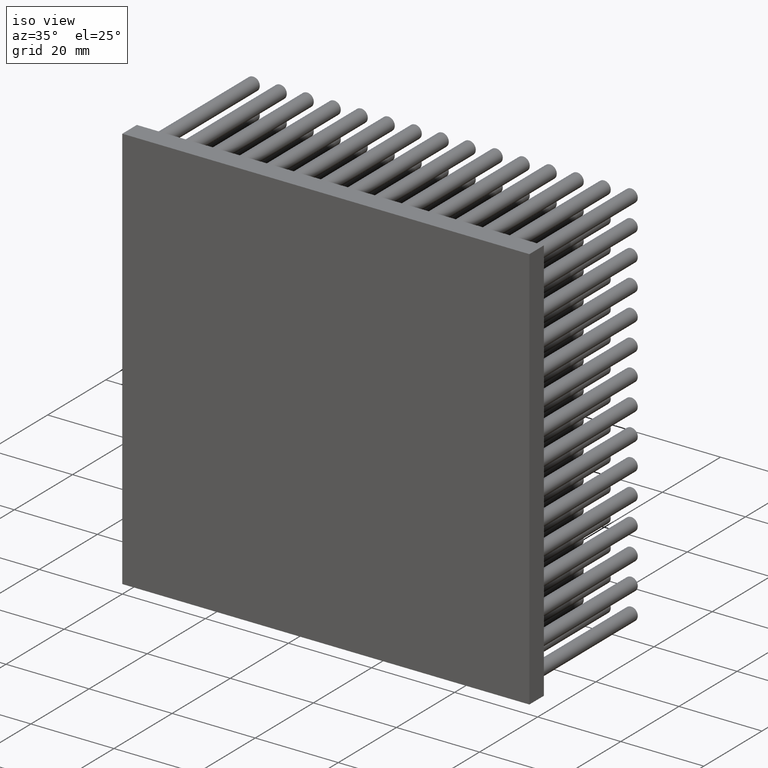
[diagram: clean part render]
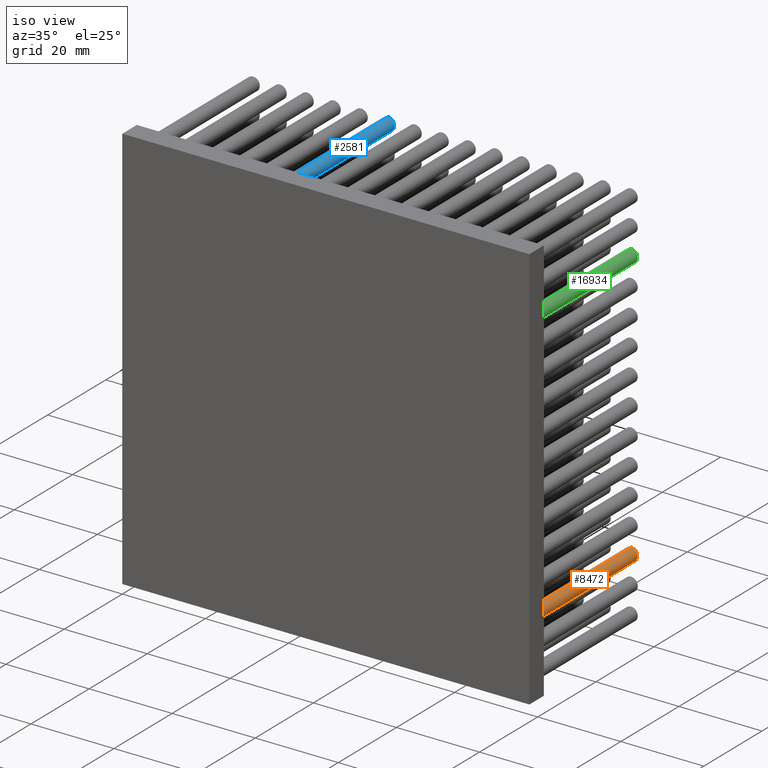
[diagram: same view with three faces highlighted in distinct colors, each labeled with its STEP entity id]
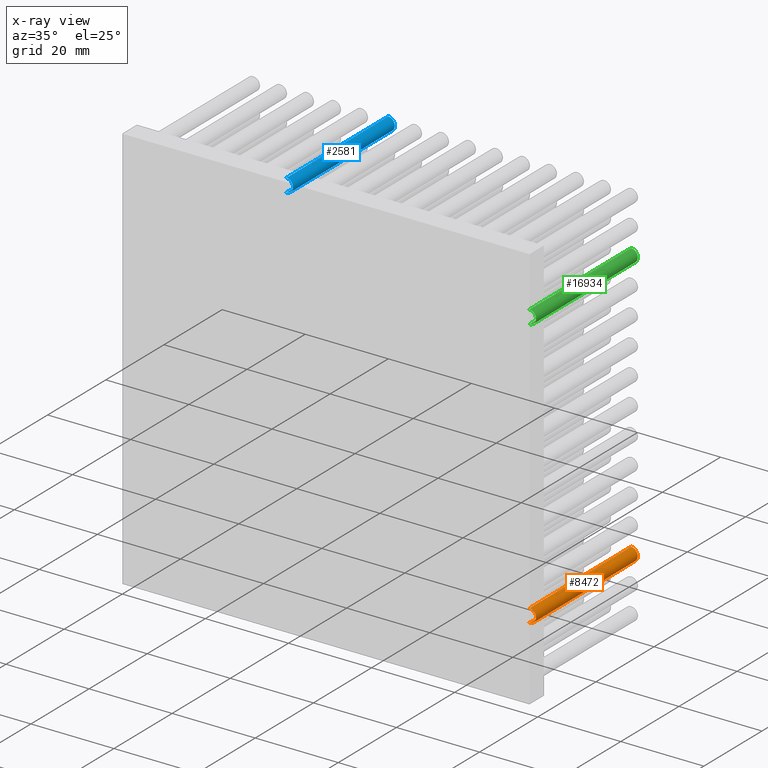
[diagram: x-ray of the same camera — body ghosted, the three highlighted faces saturated]
A machine part, iso view with three faces highlighted in distinct colors.
The next image is the same camera in x-ray (body ghosted, the three faces saturated) — at least one of them is partly hidden behind the body in this view.
Their STEP definitions:

[orange] entity #8472 — the highlighted cylindrical surface (edge-blend (fillet) strip) has radius 1.6 mm, axis along (-0, -1, -0).
#582 = ORIENTED_EDGE ( 'NONE', *, *, #1621, .T. ) ;
#730 = CARTESIAN_POINT ( 'NONE',  ( 94.49999999999998579, 40.00000000000000000, 16.50000000000000000 ) ) ;
#1064 = ORIENTED_EDGE ( 'NONE', *, *, #7811, .F. ) ;
#1621 = EDGE_CURVE ( 'NONE', #10067, #8473, #10776, .T. ) ;
#1778 = DIRECTION ( 'NONE',  ( -0.0000000000000000000, -1.000000000000000000, -0.0000000000000000000 ) ) ;
#2211 = CARTESIAN_POINT ( 'NONE',  ( 94.49999999999998579, 40.00000000000000000, 14.90000000000000036 ) ) ;
#2635 = DIRECTION ( 'NONE',  ( -0.0000000000000000000, -1.000000000000000000, -0.0000000000000000000 ) ) ;
#3077 = LINE ( 'NONE', #4450, #8586 ) ;
#3363 = EDGE_CURVE ( 'NONE', #8487, #8473, #15350, .T. ) ;
#4004 = AXIS2_PLACEMENT_3D ( 'NONE', #7870, #13501, #17751 ) ;
#4263 = CIRCLE ( 'NONE', #10144, 1.600000000000000755 ) ;
#4297 = CARTESIAN_POINT ( 'NONE',  ( 94.49999999999998579, 40.00000000000000000, 14.90000000000000036 ) ) ;
#4302 = VERTEX_POINT ( 'NONE', #8659 ) ;
#4381 = EDGE_LOOP ( 'NONE', ( #1064, #13383, #582, #12601 ) ) ;
#4450 = CARTESIAN_POINT ( 'NONE',  ( 94.49999999999998579, 40.00000000000000000, 18.10000000000000142 ) ) ;
#4780 = CYLINDRICAL_SURFACE ( 'NONE', #5862, 1.600000000000000755 ) ;
#5862 = AXIS2_PLACEMENT_3D ( 'NONE', #730, #6337, #17584 ) ;
#6337 = DIRECTION ( 'NONE',  ( -0.0000000000000000000, -1.000000000000000000, -0.0000000000000000000 ) ) ;
#7811 = EDGE_CURVE ( 'NONE', #4302, #8487, #4263, .T. ) ;
#7870 = CARTESIAN_POINT ( 'NONE',  ( 94.49999999999998579, 5.000000000000000000, 16.50000000000000000 ) ) ;
#8472 = ADVANCED_FACE ( 'NONE', ( #16024 ), #4780, .T. ) ;
#8473 = VERTEX_POINT ( 'NONE', #10580 ) ;
#8487 = VERTEX_POINT ( 'NONE', #2211 ) ;
#8586 = VECTOR ( 'NONE', #1778, 1000.000000000000000 ) ;
#8659 = CARTESIAN_POINT ( 'NONE',  ( 94.49999999999998579, 40.00000000000000000, 18.10000000000000142 ) ) ;
#9749 = VECTOR ( 'NONE', #2635, 1000.000000000000000 ) ;
#10067 = VERTEX_POINT ( 'NONE', #14711 ) ;
#10144 = AXIS2_PLACEMENT_3D ( 'NONE', #14389, #12741, #15587 ) ;
#10580 = CARTESIAN_POINT ( 'NONE',  ( 94.49999999999998579, 5.000000000000000000, 14.90000000000000036 ) ) ;
#10776 = CIRCLE ( 'NONE', #4004, 1.600000000000000755 ) ;
#11163 = EDGE_CURVE ( 'NONE', #4302, #10067, #3077, .T. ) ;
#12601 = ORIENTED_EDGE ( 'NONE', *, *, #3363, .F. ) ;
#12741 = DIRECTION ( 'NONE',  ( 0.0000000000000000000, 1.000000000000000000, 0.0000000000000000000 ) ) ;
#13383 = ORIENTED_EDGE ( 'NONE', *, *, #11163, .T. ) ;
#13501 = DIRECTION ( 'NONE',  ( 0.0000000000000000000, 1.000000000000000000, 0.0000000000000000000 ) ) ;
#14389 = CARTESIAN_POINT ( 'NONE',  ( 94.49999999999998579, 40.00000000000000000, 16.50000000000000000 ) ) ;
#14711 = CARTESIAN_POINT ( 'NONE',  ( 94.49999999999998579, 5.000000000000000000, 18.10000000000000142 ) ) ;
#15350 = LINE ( 'NONE', #4297, #9749 ) ;
#15587 = DIRECTION ( 'NONE',  ( 0.0000000000000000000, 0.0000000000000000000, 1.000000000000000000 ) ) ;
#16024 = FACE_OUTER_BOUND ( 'NONE', #4381, .T. ) ;
#17584 = DIRECTION ( 'NONE',  ( 0.0000000000000000000, 0.0000000000000000000, -1.000000000000000000 ) ) ;
#17751 = DIRECTION ( 'NONE',  ( 0.0000000000000000000, 0.0000000000000000000, 1.000000000000000000 ) ) ;

[blue] entity #2581 — the highlighted cylindrical surface (edge-blend (fillet) strip) has radius 1.6 mm, axis along (-0, -1, -0).
#100 = AXIS2_PLACEMENT_3D ( 'NONE', #17014, #2925, #12598 ) ;
#110 = ORIENTED_EDGE ( 'NONE', *, *, #13318, .F. ) ;
#282 = AXIS2_PLACEMENT_3D ( 'NONE', #4287, #4084, #15606 ) ;
#1370 = EDGE_LOOP ( 'NONE', ( #12115, #1948, #10600, #110 ) ) ;
#1587 = VERTEX_POINT ( 'NONE', #12027 ) ;
#1609 = DIRECTION ( 'NONE',  ( 0.0000000000000000000, 1.000000000000000000, 0.0000000000000000000 ) ) ;
#1948 = ORIENTED_EDGE ( 'NONE', *, *, #6157, .T. ) ;
#2581 = ADVANCED_FACE ( 'NONE', ( #4495 ), #16746, .T. ) ;
#2909 = CARTESIAN_POINT ( 'NONE',  ( 36.00000000000002132, 40.00000000000000000, 92.89999999999997726 ) ) ;
#2925 = DIRECTION ( 'NONE',  ( -0.0000000000000000000, -1.000000000000000000, -0.0000000000000000000 ) ) ;
#3320 = DIRECTION ( 'NONE',  ( -0.0000000000000000000, -1.000000000000000000, -0.0000000000000000000 ) ) ;
#3484 = CIRCLE ( 'NONE', #13193, 1.600000000000004086 ) ;
#3802 = VECTOR ( 'NONE', #15557, 1000.000000000000000 ) ;
#4084 = DIRECTION ( 'NONE',  ( 0.0000000000000000000, 1.000000000000000000, 0.0000000000000000000 ) ) ;
#4197 = VECTOR ( 'NONE', #3320, 1000.000000000000000 ) ;
#4287 = CARTESIAN_POINT ( 'NONE',  ( 36.00000000000002132, 40.00000000000000000, 94.49999999999998579 ) ) ;
#4495 = FACE_OUTER_BOUND ( 'NONE', #1370, .T. ) ;
#6157 = EDGE_CURVE ( 'NONE', #17824, #1587, #14379, .T. ) ;
#6574 = VERTEX_POINT ( 'NONE', #13810 ) ;
#7057 = CARTESIAN_POINT ( 'NONE',  ( 36.00000000000002132, 40.00000000000000000, 92.89999999999997726 ) ) ;
#7319 = LINE ( 'NONE', #7057, #3802 ) ;
#10068 = CARTESIAN_POINT ( 'NONE',  ( 36.00000000000002132, 40.00000000000000000, 96.09999999999999432 ) ) ;
#10333 = VERTEX_POINT ( 'NONE', #2909 ) ;
#10600 = ORIENTED_EDGE ( 'NONE', *, *, #17780, .T. ) ;
#12027 = CARTESIAN_POINT ( 'NONE',  ( 36.00000000000002132, 5.000000000000000000, 96.09999999999999432 ) ) ;
#12115 = ORIENTED_EDGE ( 'NONE', *, *, #13549, .F. ) ;
#12598 = DIRECTION ( 'NONE',  ( 0.0000000000000000000, 0.0000000000000000000, -1.000000000000000000 ) ) ;
#12935 = CIRCLE ( 'NONE', #282, 1.600000000000004086 ) ;
#13193 = AXIS2_PLACEMENT_3D ( 'NONE', #14123, #1609, #15854 ) ;
#13318 = EDGE_CURVE ( 'NONE', #10333, #6574, #7319, .T. ) ;
#13549 = EDGE_CURVE ( 'NONE', #17824, #10333, #12935, .T. ) ;
#13810 = CARTESIAN_POINT ( 'NONE',  ( 36.00000000000002132, 5.000000000000000000, 92.89999999999997726 ) ) ;
#14123 = CARTESIAN_POINT ( 'NONE',  ( 36.00000000000002132, 5.000000000000000000, 94.49999999999998579 ) ) ;
#14379 = LINE ( 'NONE', #17144, #4197 ) ;
#15557 = DIRECTION ( 'NONE',  ( -0.0000000000000000000, -1.000000000000000000, -0.0000000000000000000 ) ) ;
#15606 = DIRECTION ( 'NONE',  ( 0.0000000000000000000, 0.0000000000000000000, 1.000000000000000000 ) ) ;
#15854 = DIRECTION ( 'NONE',  ( 0.0000000000000000000, 0.0000000000000000000, 1.000000000000000000 ) ) ;
#16746 = CYLINDRICAL_SURFACE ( 'NONE', #100, 1.600000000000004086 ) ;
#17014 = CARTESIAN_POINT ( 'NONE',  ( 36.00000000000002132, 40.00000000000000000, 94.49999999999998579 ) ) ;
#17144 = CARTESIAN_POINT ( 'NONE',  ( 36.00000000000002132, 40.00000000000000000, 96.09999999999999432 ) ) ;
#17780 = EDGE_CURVE ( 'NONE', #1587, #6574, #3484, .T. ) ;
#17824 = VERTEX_POINT ( 'NONE', #10068 ) ;

[green] entity #16934 — the highlighted cylindrical surface (edge-blend (fillet) strip) has radius 1.6 mm, axis along (-0, -1, -0).
#157 = DIRECTION ( 'NONE',  ( -0.0000000000000000000, -1.000000000000000000, -0.0000000000000000000 ) ) ;
#225 = CARTESIAN_POINT ( 'NONE',  ( 94.50000000000000000, 40.00000000000000000, 83.09999999999999432 ) ) ;
#268 = CARTESIAN_POINT ( 'NONE',  ( 94.50000000000000000, 5.000000000000000000, 83.09999999999999432 ) ) ;
#467 = VECTOR ( 'NONE', #11629, 1000.000000000000000 ) ;
#645 = CIRCLE ( 'NONE', #10074, 1.600000000000004086 ) ;
#788 = ORIENTED_EDGE ( 'NONE', *, *, #1401, .T. ) ;
#1032 = CARTESIAN_POINT ( 'NONE',  ( 94.50000000000000000, 40.00000000000000000, 81.49999999999998579 ) ) ;
#1118 = FACE_OUTER_BOUND ( 'NONE', #5283, .T. ) ;
#1204 = DIRECTION ( 'NONE',  ( -0.0000000000000000000, -1.000000000000000000, -0.0000000000000000000 ) ) ;
#1401 = EDGE_CURVE ( 'NONE', #16012, #2490, #13018, .T. ) ;
#2055 = CARTESIAN_POINT ( 'NONE',  ( 94.50000000000000000, 40.00000000000000000, 79.89999999999999147 ) ) ;
#2217 = EDGE_CURVE ( 'NONE', #2490, #5413, #645, .T. ) ;
#2490 = VERTEX_POINT ( 'NONE', #268 ) ;
#3143 = DIRECTION ( 'NONE',  ( 0.0000000000000000000, 1.000000000000000000, 0.0000000000000000000 ) ) ;
#4647 = CARTESIAN_POINT ( 'NONE',  ( 94.50000000000000000, 40.00000000000000000, 81.49999999999998579 ) ) ;
#5283 = EDGE_LOOP ( 'NONE', ( #6769, #788, #12489, #8843 ) ) ;
#5316 = CIRCLE ( 'NONE', #8264, 1.600000000000004086 ) ;
#5413 = VERTEX_POINT ( 'NONE', #15742 ) ;
#6712 = CYLINDRICAL_SURFACE ( 'NONE', #16597, 1.600000000000004086 ) ;
#6769 = ORIENTED_EDGE ( 'NONE', *, *, #10564, .F. ) ;
#8264 = AXIS2_PLACEMENT_3D ( 'NONE', #4647, #15878, #8886 ) ;
#8507 = LINE ( 'NONE', #14144, #15624 ) ;
#8843 = ORIENTED_EDGE ( 'NONE', *, *, #9049, .F. ) ;
#8886 = DIRECTION ( 'NONE',  ( 0.0000000000000000000, 0.0000000000000000000, 1.000000000000000000 ) ) ;
#9049 = EDGE_CURVE ( 'NONE', #12567, #5413, #8507, .T. ) ;
#10074 = AXIS2_PLACEMENT_3D ( 'NONE', #17047, #3143, #14385 ) ;
#10564 = EDGE_CURVE ( 'NONE', #16012, #12567, #5316, .T. ) ;
#11629 = DIRECTION ( 'NONE',  ( -0.0000000000000000000, -1.000000000000000000, -0.0000000000000000000 ) ) ;
#12173 = DIRECTION ( 'NONE',  ( 0.0000000000000000000, 0.0000000000000000000, -1.000000000000000000 ) ) ;
#12489 = ORIENTED_EDGE ( 'NONE', *, *, #2217, .T. ) ;
#12567 = VERTEX_POINT ( 'NONE', #2055 ) ;
#13018 = LINE ( 'NONE', #225, #467 ) ;
#14144 = CARTESIAN_POINT ( 'NONE',  ( 94.50000000000000000, 40.00000000000000000, 79.89999999999999147 ) ) ;
#14385 = DIRECTION ( 'NONE',  ( 0.0000000000000000000, 0.0000000000000000000, 1.000000000000000000 ) ) ;
#15624 = VECTOR ( 'NONE', #157, 1000.000000000000000 ) ;
#15742 = CARTESIAN_POINT ( 'NONE',  ( 94.50000000000000000, 5.000000000000000000, 79.89999999999999147 ) ) ;
#15878 = DIRECTION ( 'NONE',  ( 0.0000000000000000000, 1.000000000000000000, 0.0000000000000000000 ) ) ;
#16012 = VERTEX_POINT ( 'NONE', #16362 ) ;
#16362 = CARTESIAN_POINT ( 'NONE',  ( 94.50000000000000000, 40.00000000000000000, 83.09999999999999432 ) ) ;
#16597 = AXIS2_PLACEMENT_3D ( 'NONE', #1032, #1204, #12173 ) ;
#16934 = ADVANCED_FACE ( 'NONE', ( #1118 ), #6712, .T. ) ;
#17047 = CARTESIAN_POINT ( 'NONE',  ( 94.50000000000000000, 5.000000000000000000, 81.49999999999998579 ) ) ;